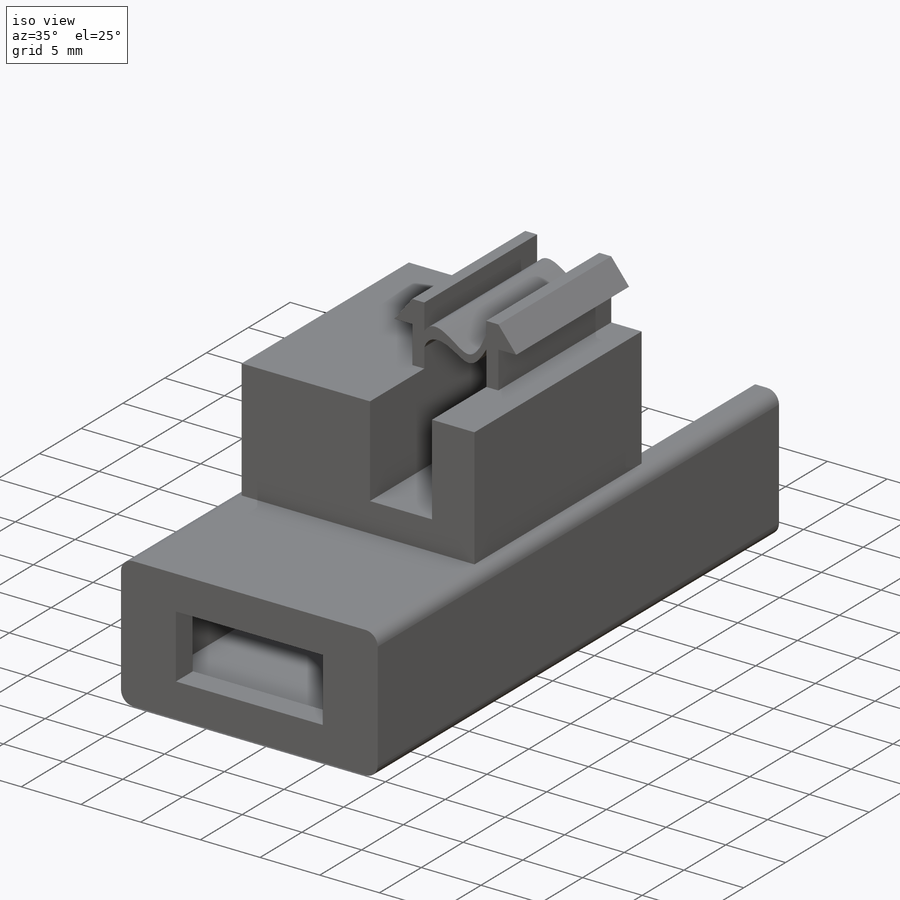
[diagram: iso view]
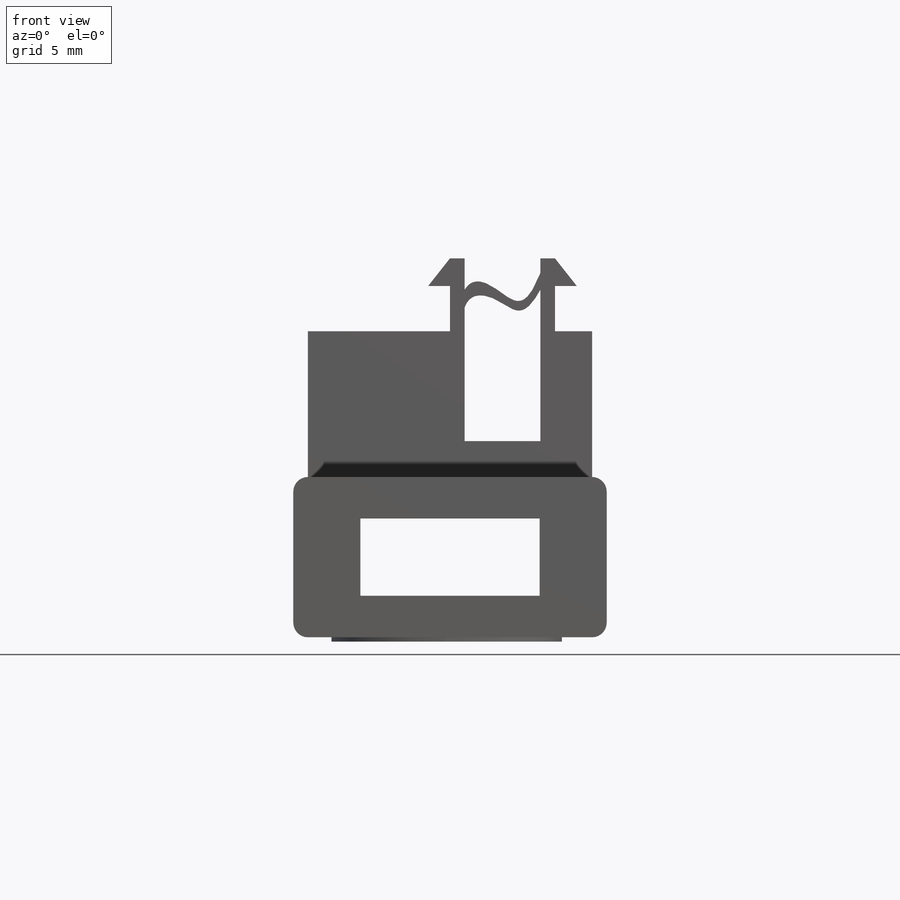
[diagram: front view]
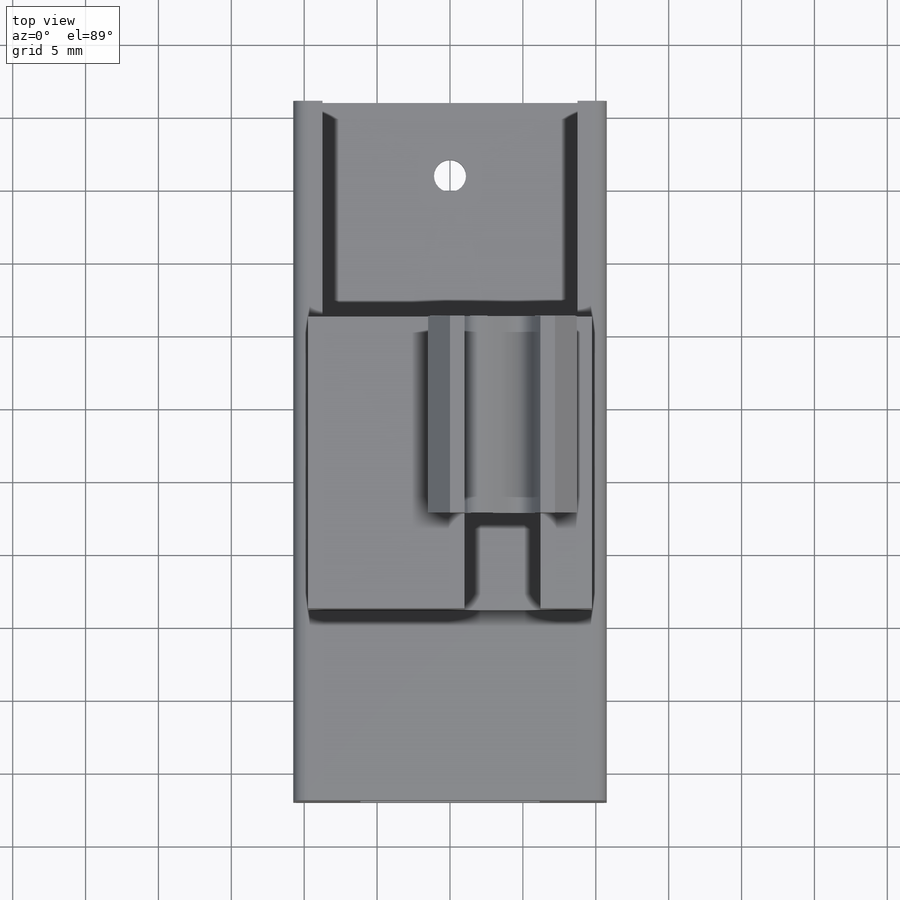
[diagram: top view]
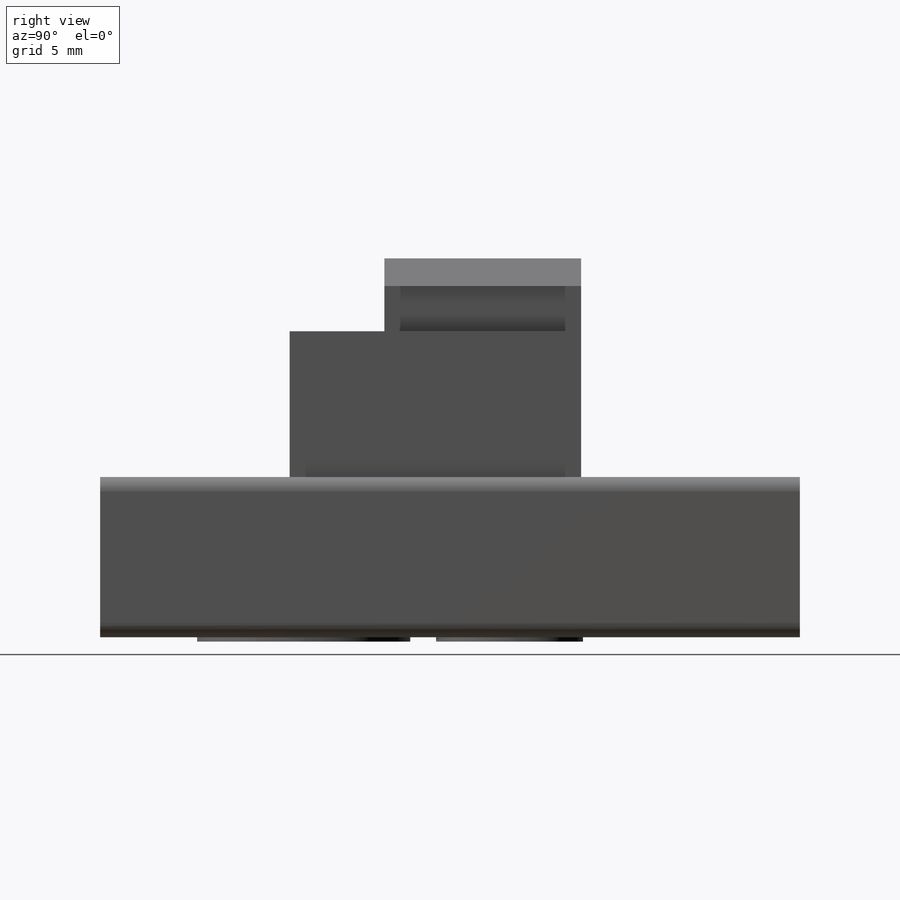
[diagram: right view]
SOLIDWORKS PART (.sldprt)
format: sldprt  version: not decoded by parser v0  size: 368,640 bytes
history: native  units: mm
features: sketch x10, extrude x7, plane x3, cut_extrude x3, material x1 (+13 scaffold rows collapsed)
feature tree (37):
  scaffold x13  (default folders/planes/origin — collapsed)
  material  "Material <não especificado>"
  plane  "Plano frontal"
  plane  "Plano superior"
  plane  "Plano direito"
  sketch  "Esboço1"  dims[D7=1.0mm D1=12.3mm D2=5.3mm D3=17.5mm D4=7.0mm D5=2.0mm D6=2.0mm]
  extrude  "Ressalto-extrusão1"  Depth=36mm
  extrude  "Ressalto-extrusão2"  [1 undecoded]
  sketch  "Esboço1<3>"  dims[D1=2.0mm]
  extrude  "Ressalto-extrusão3"  [1 undecoded]
  sketch  "Esboço1<4>"  dims[D1=10.0mm]
  sketch  "Esboço2"  dims[D1=4.0mm D2=33.0mm]
  cut_extrude  "Corte-extrusão1"  Depth=2mm
  sketch  "Esboço4"  dims[D1=7.2mm D2=13.5mm D3=2.0mm]
  extrude  "Ressalto-extrusão4"  Depth=15mm
  sketch  "Esboço5"  dims[D1=20.0mm]
  extrude  "Ressalto-extrusão5"  Depth=12mm
  sketch  "Esboço6"  dims[D1=1.5mm D2=1.5mm D3=1.9mm D4=1.9mm]
  extrude  "Ressalto-extrusão6"  [1 undecoded]
  sketch  "Esboço7"  dims[D1=1.0mm D2=1.0mm]
  cut_extrude  "Corte-extrusão2"  [1 undecoded]
  sketch  "Esboço8"  dims[c1.D1=2.2mm c1.D2=2.0mm c2.D1=38.1mm c2.D2=5.0mm]
  cut_extrude  "Corte-extrusão3"  Depth=12mm
  sketch  "Esboço10"
  extrude  "Ressalto-extrusão7"  Depth=0.3mm
decode coverage: 15 of 20 modeling features carry decoded parameters
note: 4 parameter values undecoded
summary: no parameter record found for 4 features
note: suppression state not decoded; provenance and decode notes live in map.json
